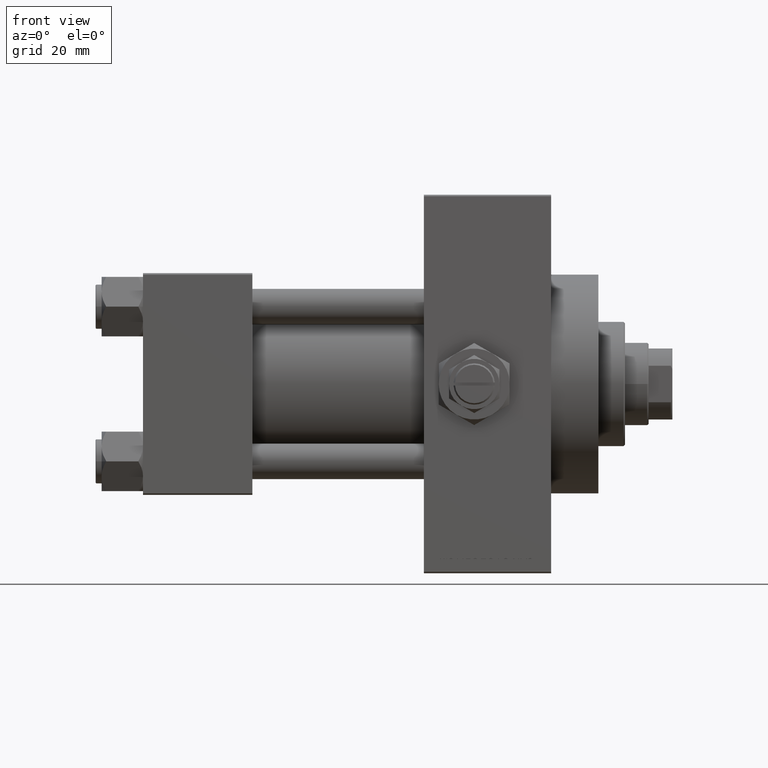
[diagram: clean part render]
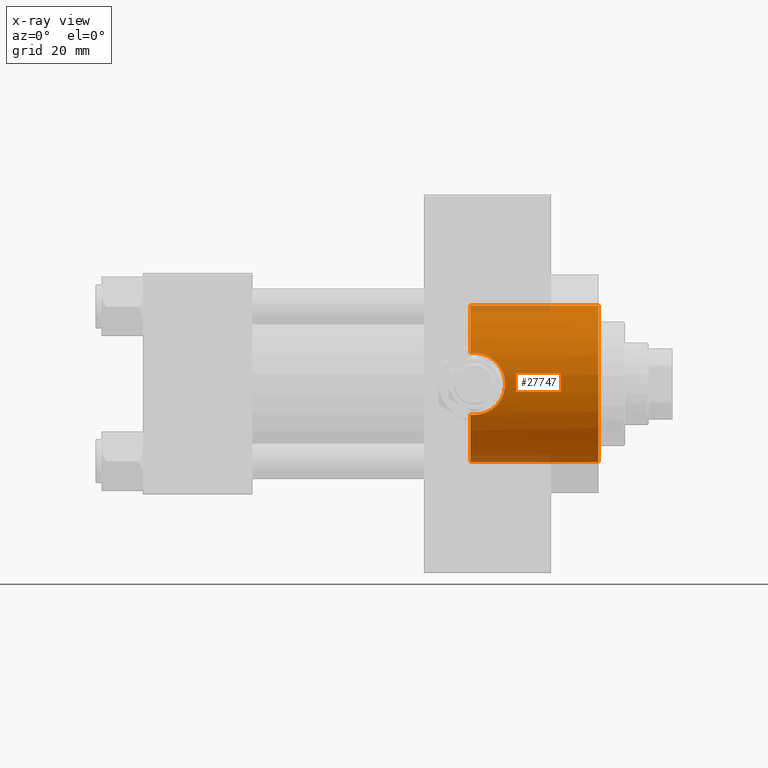
[diagram: x-ray — body ghosted, one internal face saturated and labeled with its STEP entity id]
A machine part, front view, then the same camera in x-ray: the body is ghosted and one INTERNAL B-rep face — a face not visible from any outside direction — is saturated and labeled: STEP entity #27747.
In plain terms, the highlighted cylindrical surface (partial cylindrical patch) has radius 26.5 mm, axis along (1, 0, 0).
Its self-contained STEP definition (entity closure, byte-faithful):
#183 = CARTESIAN_POINT ( 'NONE',  ( 110.7400000000000375, 0.000000000000000000, -26.50000000000000355 ) ) ;
#358 = ORIENTED_EDGE ( 'NONE', *, *, #10724, .T. ) ;
#569 = CARTESIAN_POINT ( 'NONE',  ( 114.7461877943153752, -24.48462605612510856, -10.13781324604279099 ) ) ;
#829 = CARTESIAN_POINT ( 'NONE',  ( 119.6501220615578234, -25.51256335955728716, -7.170912732211446539 ) ) ;
#973 = EDGE_CURVE ( 'NONE', #7883, #1897, #24281, .T. ) ;
#1432 = CARTESIAN_POINT ( 'NONE',  ( 112.0000000000000000, -24.33967132070604222, -10.47999999999999865 ) ) ;
#1803 = CARTESIAN_POINT ( 'NONE',  ( 116.6659000583122605, -24.77500862834706652, 9.408993987884901600 ) ) ;
#1897 = VERTEX_POINT ( 'NONE', #48697 ) ;
#2287 = CARTESIAN_POINT ( 'NONE',  ( 122.2075249541714896, -26.39335609204158573, 2.399236127628239235 ) ) ;
#2609 = B_SPLINE_CURVE_WITH_KNOTS ( 'NONE', 3,
 ( #14039, #21727, #18021, #29879 ),
 .UNSPECIFIED., .F., .F.,
 ( 4, 4 ),
 ( 0.000000000000000000, 0.001255586767787659347 ),
 .UNSPECIFIED. ) ;
#2753 = DIRECTION ( 'NONE',  ( 0.000000000000000000, 0.000000000000000000, -1.000000000000000000 ) ) ;
#3230 = VERTEX_POINT ( 'NONE', #32965 ) ;
#3657 = VECTOR ( 'NONE', #16376, 1000.000000000000000 ) ;
#4219 = DIRECTION ( 'NONE',  ( 1.000000000000000000, -0.000000000000000000, -0.000000000000000000 ) ) ;
#4274 = CARTESIAN_POINT ( 'NONE',  ( 121.0816778311290136, -25.97633853132261450, -5.273786452924785983 ) ) ;
#5252 = CARTESIAN_POINT ( 'NONE',  ( 118.1110651716822275, -25.09360970262138224, 8.520611273842996880 ) ) ;
#5502 = CARTESIAN_POINT ( 'NONE',  ( 114.7286532048194516, -24.48994387988090082, 10.12445329003761252 ) ) ;
#5977 = CARTESIAN_POINT ( 'NONE',  ( 115.3904700717597649, -24.57248644795726022, 9.922439993611771314 ) ) ;
#6227 = CARTESIAN_POINT ( 'NONE',  ( 122.4798633477534509, -26.49994595790488106, 0.6963870350870486892 ) ) ;
#6878 = CARTESIAN_POINT ( 'NONE',  ( 112.0000000000000000, -24.33967132070604222, 10.48000000000000220 ) ) ;
#6934 = DIRECTION ( 'NONE',  ( 1.000000000000000000, 0.000000000000000000, 0.000000000000000000 ) ) ;
#6978 = CARTESIAN_POINT ( 'NONE',  ( 110.7400000000000375, -24.37226292324945476, 10.40398000767014786 ) ) ;
#7110 = CIRCLE ( 'NONE', #42710, 26.50000000000000355 ) ;
#7883 = VERTEX_POINT ( 'NONE', #31968 ) ;
#7979 = CARTESIAN_POINT ( 'NONE',  ( 118.4049404352972061, -25.16229795609818964, -8.322848467437539810 ) ) ;
#8401 = CARTESIAN_POINT ( 'NONE',  ( 110.7400000000000375, 0.000000000000000000, 0.000000000000000000 ) ) ;
#8464 = CARTESIAN_POINT ( 'NONE',  ( 121.9389570606566053, -26.28956209411557765, -3.395175965175880606 ) ) ;
#8965 = CARTESIAN_POINT ( 'NONE',  ( 121.8022638174866046, -26.23907308479208922, 3.723318718764354163 ) ) ;
#8979 = EDGE_CURVE ( 'NONE', #7883, #36012, #7110, .T. ) ;
#9195 = CARTESIAN_POINT ( 'NONE',  ( 122.1219222710722505, -26.36027543327034905, 2.738055544399104146 ) ) ;
#9345 = ORIENTED_EDGE ( 'NONE', *, *, #15518, .F. ) ;
#9682 = CARTESIAN_POINT ( 'NONE',  ( 121.9191483855533704, -26.28308039691835418, 3.400110870430098853 ) ) ;
#9723 = DIRECTION ( 'NONE',  ( 0.000000000000000000, 0.000000000000000000, -1.000000000000000000 ) ) ;
#9956 = AXIS2_PLACEMENT_3D ( 'NONE', #37161, #6934, #2753 ) ;
#10724 = EDGE_CURVE ( 'NONE', #29828, #36012, #16371, .T. ) ;
#11526 = CARTESIAN_POINT ( 'NONE',  ( 110.7400000000000375, 0.000000000000000000, -26.50000000000000355 ) ) ;
#11739 = ORIENTED_EDGE ( 'NONE', *, *, #43526, .T. ) ;
#11932 = CARTESIAN_POINT ( 'NONE',  ( 112.0000000000000000, -24.33967132070604222, -10.47999999999999865 ) ) ;
#12908 = CARTESIAN_POINT ( 'NONE',  ( 114.3947302122627718, -24.45488967133337965, 10.20851256290626985 ) ) ;
#13307 = EDGE_CURVE ( 'NONE', #3230, #43907, #2609, .T. ) ;
#13388 = CARTESIAN_POINT ( 'NONE',  ( 121.0679913760332198, -25.97354752128884314, 5.264851845784580320 ) ) ;
#13584 = DIRECTION ( 'NONE',  ( 0.000000000000000000, 0.000000000000000000, -1.000000000000000000 ) ) ;
#13635 = CARTESIAN_POINT ( 'NONE',  ( 118.3864792908362773, -25.16230905708522414, 8.316254619809553716 ) ) ;
#14039 = CARTESIAN_POINT ( 'NONE',  ( 110.7400000000000375, -24.37226292324945831, -10.40398000767014430 ) ) ;
#15112 = CYLINDRICAL_SURFACE ( 'NONE', #31484, 26.50000000000000355 ) ;
#15400 = CARTESIAN_POINT ( 'NONE',  ( 117.2635990777562256, -24.90054338428140568, -9.068796382691635571 ) ) ;
#15518 = EDGE_CURVE ( 'NONE', #3230, #19552, #28717, .T. ) ;
#15901 = CARTESIAN_POINT ( 'NONE',  ( 120.5155153844950462, -25.78569419426082021, -6.118106053452859960 ) ) ;
#16371 = B_SPLINE_CURVE_WITH_KNOTS ( 'NONE', 3,
 ( #6878, #28921, #21990, #40325 ),
 .UNSPECIFIED., .F., .F.,
 ( 4, 4 ),
 ( 0.03437190755806011910, 0.03561776921873218565 ),
 .UNSPECIFIED. ) ;
#16376 = DIRECTION ( 'NONE',  ( 1.000000000000000000, -0.000000000000000000, -0.000000000000000000 ) ) ;
#16642 = CARTESIAN_POINT ( 'NONE',  ( 122.4114040688938587, -26.47265107862981992, 1.382412405478188999 ) ) ;
#16874 = CARTESIAN_POINT ( 'NONE',  ( 122.3935590552673744, -26.46591511510092687, -1.387412420731371165 ) ) ;
#17111 = CARTESIAN_POINT ( 'NONE',  ( 122.4626037639855838, -26.49310609510639836, -0.6963515910539334053 ) ) ;
#17417 = CARTESIAN_POINT ( 'NONE',  ( 110.7400000000000375, 0.000000000000000000, 0.000000000000000000 ) ) ;
#18021 = CARTESIAN_POINT ( 'NONE',  ( 111.5811236364006049, -24.33967132070604222, -10.47999999999999865 ) ) ;
#18670 = CIRCLE ( 'NONE', #9956, 26.50000000000000355 ) ;
#19134 = CARTESIAN_POINT ( 'NONE',  ( 113.3786097457406044, -24.36915941385104745, -10.41231194222669387 ) ) ;
#19552 = VERTEX_POINT ( 'NONE', #183 ) ;
#19859 = VECTOR ( 'NONE', #38288, 1000.000000000000000 ) ;
#19877 = CARTESIAN_POINT ( 'NONE',  ( 115.4024368383431352, -24.56844862672225815, -9.935854460437969493 ) ) ;
#20046 = AXIS2_PLACEMENT_3D ( 'NONE', #17417, #28547, #9723 ) ;
#20588 = CARTESIAN_POINT ( 'NONE',  ( 110.7400000000000375, 3.245314017740486554E-15, 26.50000000000000355 ) ) ;
#20607 = CARTESIAN_POINT ( 'NONE',  ( 117.2636119660474066, -24.89625137302610369, 9.087734872939172703 ) ) ;
#21727 = CARTESIAN_POINT ( 'NONE',  ( 111.1611364518797984, -24.35049096341792918, -10.45498279016081611 ) ) ;
#21990 = CARTESIAN_POINT ( 'NONE',  ( 111.1580741051582635, -24.35064928096444348, 10.45461191700782422 ) ) ;
#22658 = ORIENTED_EDGE ( 'NONE', *, *, #28340, .T. ) ;
#23080 = CARTESIAN_POINT ( 'NONE',  ( 119.8811664359166400, -25.58300917221409421, -6.916171625962136638 ) ) ;
#23174 = LINE ( 'NONE', #11526, #19859 ) ;
#23263 = DIRECTION ( 'NONE',  ( 0.000000000000000000, 0.000000000000000000, -1.000000000000000000 ) ) ;
#24063 = CARTESIAN_POINT ( 'NONE',  ( 120.3165002292777785, -25.71874665637611201, 6.413821170274212946 ) ) ;
#24281 = LINE ( 'NONE', #20588, #3657 ) ;
#24297 = CARTESIAN_POINT ( 'NONE',  ( 112.6982936874238703, -24.33967132070603867, 10.47999999999999865 ) ) ;
#24494 = CARTESIAN_POINT ( 'NONE',  ( 110.7400000000000375, 0.000000000000000000, 0.000000000000000000 ) ) ;
#24546 = CARTESIAN_POINT ( 'NONE',  ( 120.8904987776702171, -25.91192981801191664, 5.559420023815757617 ) ) ;
#25245 = CARTESIAN_POINT ( 'NONE',  ( 112.0000000000000000, -24.33967132070604222, 10.48000000000000220 ) ) ;
#26483 = FACE_OUTER_BOUND ( 'NONE', #34684, .T. ) ;
#27747 = ADVANCED_FACE ( 'NONE', ( #26483 ), #15112, .F. ) ;
#28340 = EDGE_CURVE ( 'NONE', #43907, #29828, #37197, .T. ) ;
#28500 = CARTESIAN_POINT ( 'NONE',  ( 118.9147507852791676, -25.30155050139244111, 7.882476147205595751 ) ) ;
#28547 = DIRECTION ( 'NONE',  ( 1.000000000000000000, 0.000000000000000000, 0.000000000000000000 ) ) ;
#28554 = VERTEX_POINT ( 'NONE', #45339 ) ;
#28717 = CIRCLE ( 'NONE', #20046, 26.50000000000000355 ) ;
#28921 = CARTESIAN_POINT ( 'NONE',  ( 111.5796744023297293, -24.33967132070604222, 10.48000000000000220 ) ) ;
#29828 = VERTEX_POINT ( 'NONE', #25245 ) ;
#29879 = CARTESIAN_POINT ( 'NONE',  ( 112.0000000000000000, -24.33967132070604222, -10.47999999999999865 ) ) ;
#31001 = CARTESIAN_POINT ( 'NONE',  ( 121.4057128516256370, -26.09263577897064224, -4.673612418766447618 ) ) ;
#31484 = AXIS2_PLACEMENT_3D ( 'NONE', #8401, #4219, #23263 ) ;
#31503 = CARTESIAN_POINT ( 'NONE',  ( 122.4800680225664280, -26.50002690099941205, -0.3451042088078361547 ) ) ;
#31744 = CARTESIAN_POINT ( 'NONE',  ( 113.3839948142214524, -24.36973996242157625, 10.41091756284553504 ) ) ;
#31968 = CARTESIAN_POINT ( 'NONE',  ( 110.7400000000000375, 3.245314017740486554E-15, 26.50000000000000355 ) ) ;
#31974 = CARTESIAN_POINT ( 'NONE',  ( 121.5385175848662982, -26.14168889184968947, 4.354785931857526826 ) ) ;
#32927 = ORIENTED_EDGE ( 'NONE', *, *, #973, .T. ) ;
#32965 = CARTESIAN_POINT ( 'NONE',  ( 110.7400000000000375, -24.37226292324945831, -10.40398000767014430 ) ) ;
#34226 = CARTESIAN_POINT ( 'NONE',  ( 116.3489237122697091, -24.72318467201152714, -9.541179571695423078 ) ) ;
#34684 = EDGE_LOOP ( 'NONE', ( #40989, #32927, #11739, #39378, #9345, #48160, #22658, #358 ) ) ;
#34722 = CARTESIAN_POINT ( 'NONE',  ( 118.9276451403627135, -25.30216499957183984, -7.893159106980520257 ) ) ;
#35212 = CARTESIAN_POINT ( 'NONE',  ( 116.6580558779861150, -24.77960996754317335, -9.394203453174529983 ) ) ;
#35703 = CARTESIAN_POINT ( 'NONE',  ( 122.3421836049517140, -26.44572692659851754, -1.728475508984260278 ) ) ;
#35933 = CARTESIAN_POINT ( 'NONE',  ( 121.3916535229813576, -26.08830885934473542, 4.663043711798784408 ) ) ;
#36012 = VERTEX_POINT ( 'NONE', #6978 ) ;
#36724 = EDGE_CURVE ( 'NONE', #19552, #28554, #23174, .T. ) ;
#37161 = CARTESIAN_POINT ( 'NONE',  ( 154.0000000000000284, 0.000000000000000000, 0.000000000000000000 ) ) ;
#37197 = B_SPLINE_CURVE_WITH_KNOTS ( 'NONE', 3,
 ( #11932, #42390, #19134, #569, #19877, #34226, #35212, #15400, #41908, #7979, #34722, #829, #23080, #38193, #15901, #4274, #31001, #8464, #38694, #35703, #16874, #17111, #31503, #6227, #16642, #2287, #9195, #9682, #8965, #31974, #35933, #13388, #24546, #24063, #43858, #40139, #28500, #13635, #5252, #20607, #1803, #47585, #5977, #5502, #12908, #31744, #24297, #43614 ),
 .UNSPECIFIED., .F., .F.,
 ( 4, 2, 2, 2, 2, 2, 2, 2, 2, 2, 2, 2, 2, 2, 2, 2, 2, 2, 2, 2, 2, 2, 2, 4 ),
 ( 0.001255586767787659347, 0.003325356817179700875, 0.005395126866571742404, 0.006430011891267743869, 0.007464896915963744467, 0.009534666965355782092, 0.01056955199005181305, 0.01160443701474784574, 0.01367420706413988857, 0.01574397711353192966, 0.01677886213822795194, 0.01781374716292397076, 0.01988351721231601532, 0.02091840223701203413, 0.02195328726170805295, 0.02298817228640406482, 0.02402305731110008363, 0.02609282736049212126, 0.02712771238518812619, 0.02816259740988413460, 0.03023236745927610630, 0.03126725248397210777, 0.03230213750866811617, 0.03437190755806011910 ),
 .UNSPECIFIED. ) ;
#38193 = CARTESIAN_POINT ( 'NONE',  ( 120.3132647636415271, -25.71940794313460898, -6.390292897823913520 ) ) ;
#38288 = DIRECTION ( 'NONE',  ( 1.000000000000000000, -0.000000000000000000, -0.000000000000000000 ) ) ;
#38694 = CARTESIAN_POINT ( 'NONE',  ( 122.1391112229688076, -26.36675217432884466, -2.738755341944245192 ) ) ;
#39378 = ORIENTED_EDGE ( 'NONE', *, *, #36724, .F. ) ;
#40139 = CARTESIAN_POINT ( 'NONE',  ( 119.1663633815065140, -25.37171319999174912, 7.654298772871992895 ) ) ;
#40325 = CARTESIAN_POINT ( 'NONE',  ( 110.7400000000000375, -24.37226292324945476, 10.40398000767014786 ) ) ;
#40989 = ORIENTED_EDGE ( 'NONE', *, *, #8979, .F. ) ;
#41908 = CARTESIAN_POINT ( 'NONE',  ( 117.5577538920436780, -24.96463143003449403, -8.891425016462852327 ) ) ;
#42390 = CARTESIAN_POINT ( 'NONE',  ( 112.6904960883777846, -24.33967132070604222, -10.48000000000000043 ) ) ;
#42710 = AXIS2_PLACEMENT_3D ( 'NONE', #24494, #47280, #13584 ) ;
#43526 = EDGE_CURVE ( 'NONE', #1897, #28554, #18670, .T. ) ;
#43614 = CARTESIAN_POINT ( 'NONE',  ( 112.0000000000000000, -24.33967132070604222, 10.48000000000000220 ) ) ;
#43858 = CARTESIAN_POINT ( 'NONE',  ( 119.8850942087585736, -25.58093385762820660, 6.936447548980011035 ) ) ;
#43907 = VERTEX_POINT ( 'NONE', #1432 ) ;
#45339 = CARTESIAN_POINT ( 'NONE',  ( 154.0000000000000284, 0.000000000000000000, -26.50000000000000355 ) ) ;
#47280 = DIRECTION ( 'NONE',  ( 1.000000000000000000, 0.000000000000000000, 0.000000000000000000 ) ) ;
#47585 = CARTESIAN_POINT ( 'NONE',  ( 115.7173844672076370, -24.61993612039164248, 9.804529592362731805 ) ) ;
#48160 = ORIENTED_EDGE ( 'NONE', *, *, #13307, .T. ) ;
#48697 = CARTESIAN_POINT ( 'NONE',  ( 154.0000000000000284, 3.245314017740486554E-15, 26.50000000000000355 ) ) ;